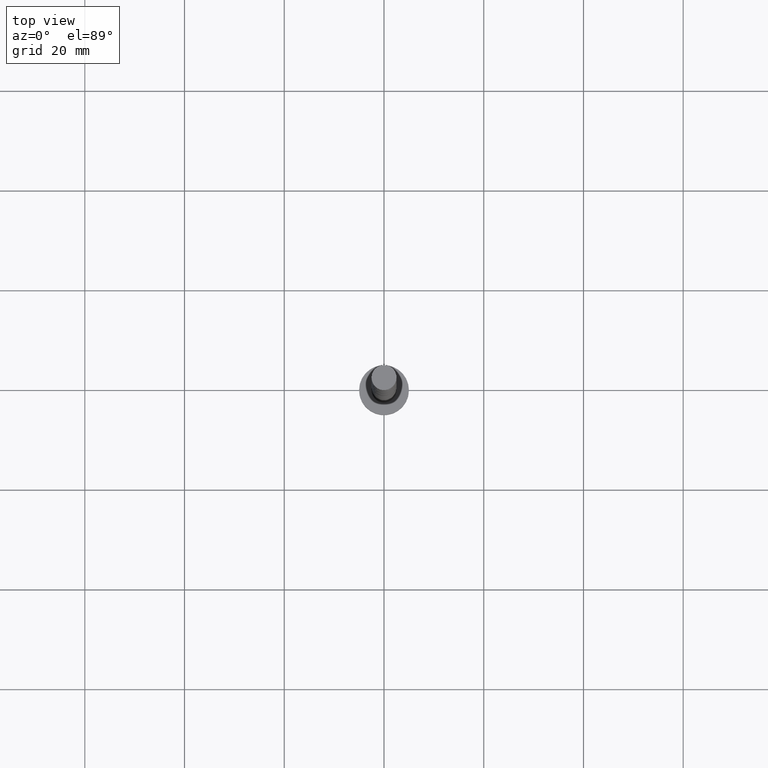
[diagram: clean part render]
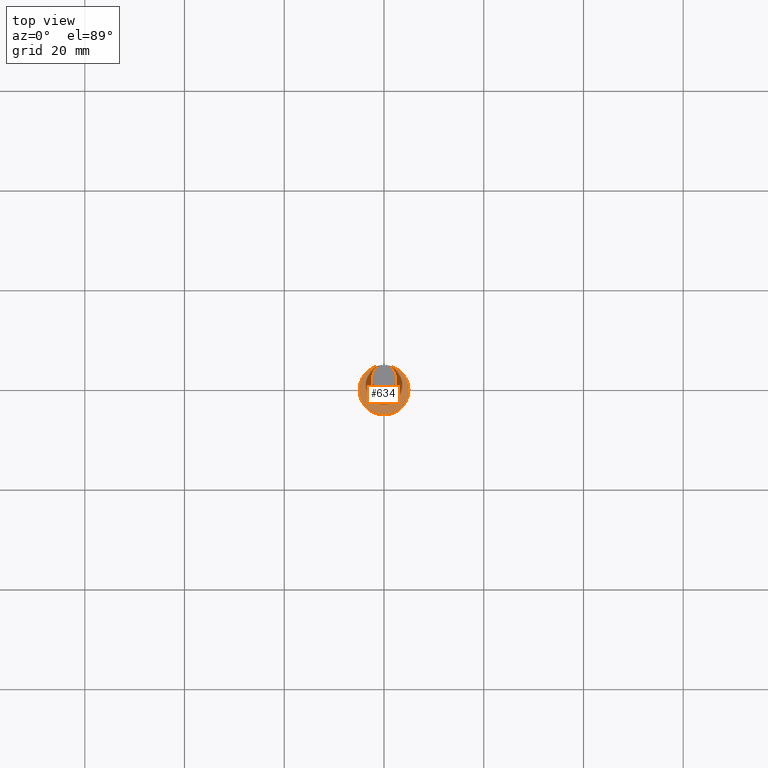
[diagram: same view with one face highlighted and labeled with its STEP entity id]
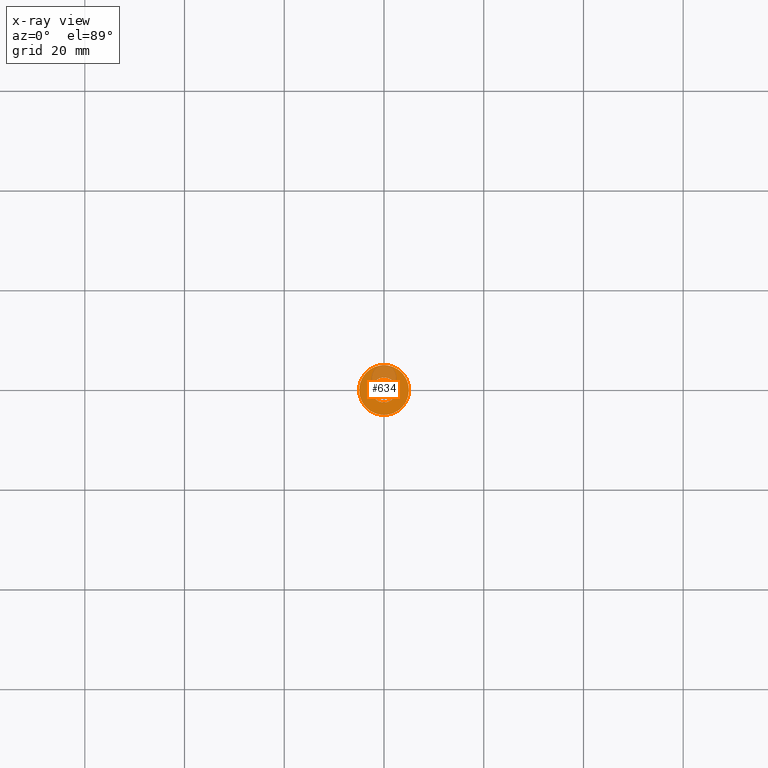
[diagram: x-ray of the same camera — body ghosted, the highlighted face saturated]
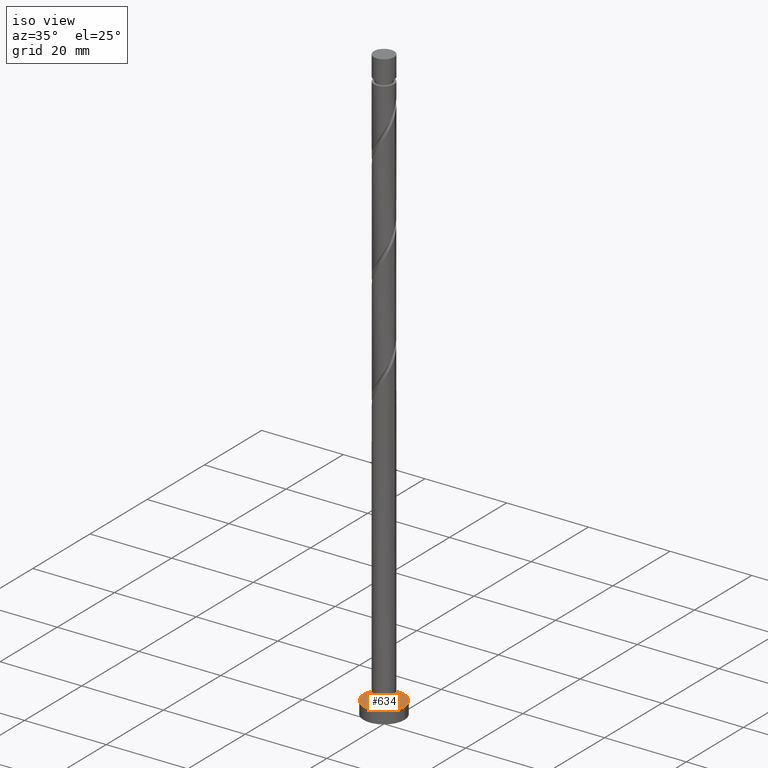
[diagram: same view with one face highlighted and labeled with its STEP entity id]
A machine part, top view. The second image highlights one B-rep face of the part: STEP entity #634.
The next image is the same camera in x-ray: the body ghosted, the highlighted face saturated — about 21% of this face is hidden behind the body in this view.
A second angle (iso view) of the same face is appended — the face is thin or edge-on in the first view.
In plain terms, the highlighted planar face has unit normal (0, 0, 1).
Its self-contained STEP definition (entity closure, byte-faithful):
#70 = CARTESIAN_POINT ( 'NONE',  ( 0.000000000000000000, 0.000000000000000000, 3.000000000000000000 ) ) ;
#77 = PLANE ( 'NONE',  #328 ) ;
#133 = DIRECTION ( 'NONE',  ( 0.000000000000000000, 0.000000000000000000, 1.000000000000000000 ) ) ;
#149 = VERTEX_POINT ( 'NONE', #578 ) ;
#197 = CIRCLE ( 'NONE', #1378, 2.500000000000000000 ) ;
#319 = DIRECTION ( 'NONE',  ( 0.000000000000000000, 0.000000000000000000, 1.000000000000000000 ) ) ;
#328 = AXIS2_PLACEMENT_3D ( 'NONE', #70, #319, #1093 ) ;
#383 = DIRECTION ( 'NONE',  ( 1.000000000000000000, 0.000000000000000000, 0.000000000000000000 ) ) ;
#427 = CARTESIAN_POINT ( 'NONE',  ( 0.000000000000000000, 0.000000000000000000, 3.000000000000000000 ) ) ;
#543 = CARTESIAN_POINT ( 'NONE',  ( -5.000000000000000000, 0.000000000000000000, 3.000000000000000000 ) ) ;
#554 = AXIS2_PLACEMENT_3D ( 'NONE', #1309, #133, #383 ) ;
#557 = CARTESIAN_POINT ( 'NONE',  ( 0.000000000000000000, 0.000000000000000000, 3.000000000000000000 ) ) ;
#578 = CARTESIAN_POINT ( 'NONE',  ( -2.500000000000000000, 0.000000000000000000, 3.000000000000000000 ) ) ;
#612 = EDGE_CURVE ( 'NONE', #1368, #969, #1605, .T. ) ;
#634 = ADVANCED_FACE ( 'NONE', ( #962, #1211 ), #77, .T. ) ;
#658 = ORIENTED_EDGE ( 'NONE', *, *, #859, .F. ) ;
#681 = DIRECTION ( 'NONE',  ( 0.000000000000000000, 0.000000000000000000, 1.000000000000000000 ) ) ;
#682 = ORIENTED_EDGE ( 'NONE', *, *, #1485, .F. ) ;
#708 = DIRECTION ( 'NONE',  ( 1.000000000000000000, 0.000000000000000000, 0.000000000000000000 ) ) ;
#793 = EDGE_LOOP ( 'NONE', ( #658, #682 ) ) ;
#808 = CIRCLE ( 'NONE', #554, 2.500000000000000000 ) ;
#831 = DIRECTION ( 'NONE',  ( 0.000000000000000000, 0.000000000000000000, 1.000000000000000000 ) ) ;
#859 = EDGE_CURVE ( 'NONE', #149, #1194, #808, .T. ) ;
#870 = AXIS2_PLACEMENT_3D ( 'NONE', #1219, #831, #1338 ) ;
#962 = FACE_BOUND ( 'NONE', #793, .T. ) ;
#969 = VERTEX_POINT ( 'NONE', #543 ) ;
#1063 = DIRECTION ( 'NONE',  ( 1.000000000000000000, 0.000000000000000000, 0.000000000000000000 ) ) ;
#1093 = DIRECTION ( 'NONE',  ( 1.000000000000000000, 0.000000000000000000, -0.000000000000000000 ) ) ;
#1142 = ORIENTED_EDGE ( 'NONE', *, *, #612, .T. ) ;
#1194 = VERTEX_POINT ( 'NONE', #1220 ) ;
#1211 = FACE_OUTER_BOUND ( 'NONE', #1527, .T. ) ;
#1219 = CARTESIAN_POINT ( 'NONE',  ( 0.000000000000000000, 0.000000000000000000, 3.000000000000000000 ) ) ;
#1220 = CARTESIAN_POINT ( 'NONE',  ( 2.500000000000000000, 3.061616997868383141E-16, 3.000000000000000000 ) ) ;
#1290 = ORIENTED_EDGE ( 'NONE', *, *, #1508, .T. ) ;
#1309 = CARTESIAN_POINT ( 'NONE',  ( 0.000000000000000000, 0.000000000000000000, 3.000000000000000000 ) ) ;
#1338 = DIRECTION ( 'NONE',  ( 1.000000000000000000, 0.000000000000000000, 0.000000000000000000 ) ) ;
#1345 = AXIS2_PLACEMENT_3D ( 'NONE', #427, #1583, #708 ) ;
#1368 = VERTEX_POINT ( 'NONE', #1427 ) ;
#1378 = AXIS2_PLACEMENT_3D ( 'NONE', #557, #681, #1063 ) ;
#1427 = CARTESIAN_POINT ( 'NONE',  ( 5.000000000000000000, 6.123233995736766282E-16, 3.000000000000000000 ) ) ;
#1485 = EDGE_CURVE ( 'NONE', #1194, #149, #197, .T. ) ;
#1508 = EDGE_CURVE ( 'NONE', #969, #1368, #1577, .T. ) ;
#1527 = EDGE_LOOP ( 'NONE', ( #1290, #1142 ) ) ;
#1577 = CIRCLE ( 'NONE', #1345, 5.000000000000000000 ) ;
#1583 = DIRECTION ( 'NONE',  ( 0.000000000000000000, 0.000000000000000000, 1.000000000000000000 ) ) ;
#1605 = CIRCLE ( 'NONE', #870, 5.000000000000000000 ) ;